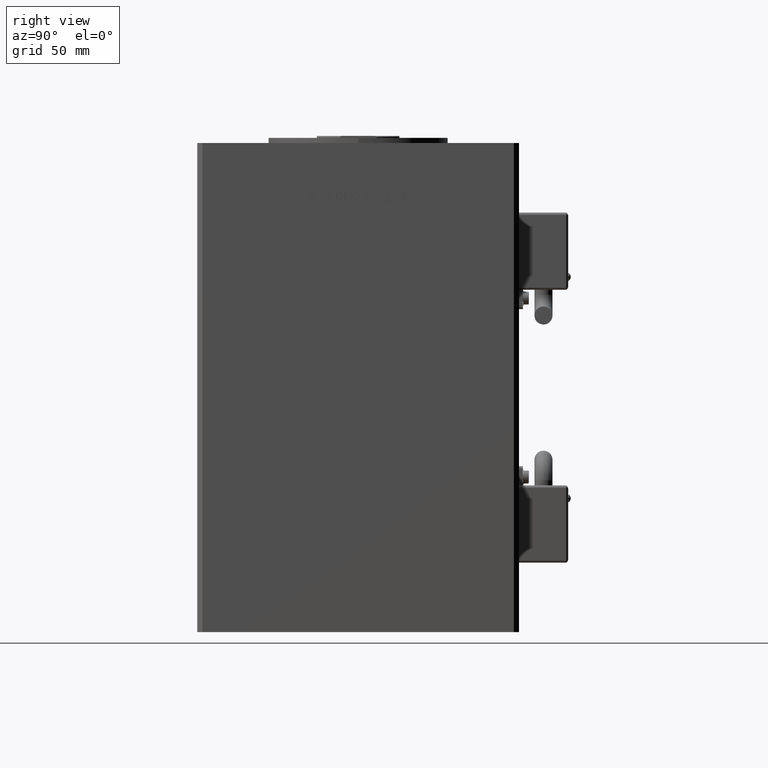
[diagram: clean part render]
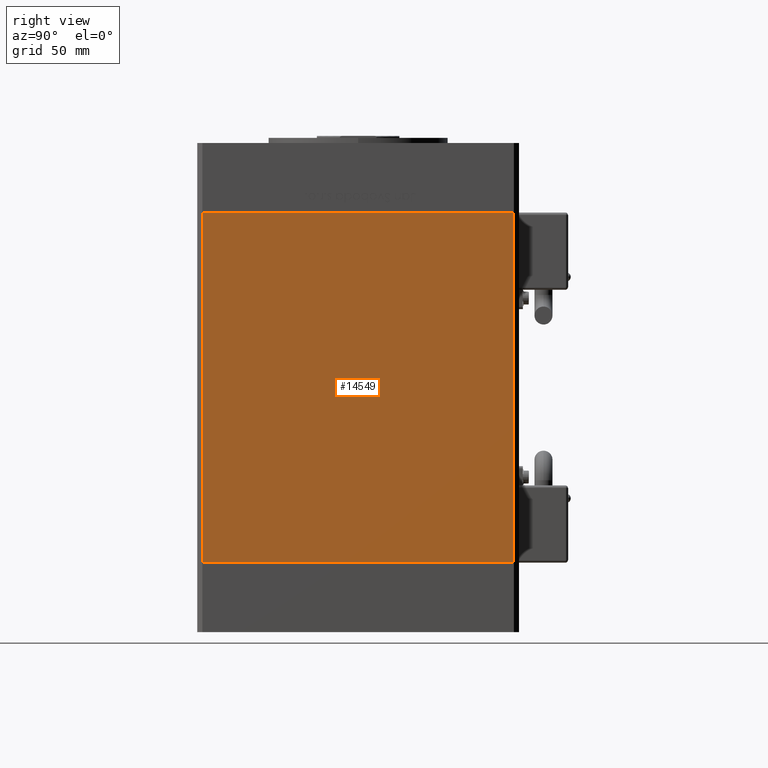
[diagram: same view with one face highlighted and labeled with its STEP entity id]
A machine part, right view. The second image highlights one B-rep face of the part: STEP entity #14549.
In plain terms, the highlighted planar face has unit normal (1, -0, 0).
Its self-contained STEP definition (entity closure, byte-faithful):
#79 = DIRECTION ( 'NONE',  ( 1.000000000000000000, -2.293849224432141861E-16, 0.000000000000000000 ) ) ;
#3422 = CARTESIAN_POINT ( 'NONE',  ( 75.00000000000001421, 60.50000000000000000, 0.000000000000000000 ) ) ;
#6721 = LINE ( 'NONE', #52458, #43470 ) ;
#7143 = PLANE ( 'NONE',  #49414 ) ;
#7386 = ORIENTED_EDGE ( 'NONE', *, *, #22043, .T. ) ;
#11599 = CARTESIAN_POINT ( 'NONE',  ( 75.00000000000001421, 60.50000000000000000, 136.0000000000000000 ) ) ;
#12408 = ORIENTED_EDGE ( 'NONE', *, *, #28996, .F. ) ;
#12756 = DIRECTION ( 'NONE',  ( -0.000000000000000000, -0.000000000000000000, -1.000000000000000000 ) ) ;
#13355 = EDGE_CURVE ( 'NONE', #47788, #54453, #50858, .T. ) ;
#14549 = ADVANCED_FACE ( 'NONE', ( #41434 ), #7143, .T. ) ;
#14596 = CARTESIAN_POINT ( 'NONE',  ( 75.00000000000001421, 60.50000000000000000, 0.000000000000000000 ) ) ;
#16326 = VERTEX_POINT ( 'NONE', #18006 ) ;
#18006 = CARTESIAN_POINT ( 'NONE',  ( 74.99999999999998579, -60.50000000000000000, 0.000000000000000000 ) ) ;
#19045 = LINE ( 'NONE', #14596, #51417 ) ;
#19870 = ORIENTED_EDGE ( 'NONE', *, *, #20828, .F. ) ;
#20828 = EDGE_CURVE ( 'NONE', #50818, #16326, #19045, .T. ) ;
#22043 = EDGE_CURVE ( 'NONE', #54453, #16326, #6721, .T. ) ;
#23506 = DIRECTION ( 'NONE',  ( -2.293849224432141861E-16, -1.000000000000000000, 0.000000000000000000 ) ) ;
#25242 = ORIENTED_EDGE ( 'NONE', *, *, #13355, .T. ) ;
#26085 = DIRECTION ( 'NONE',  ( -2.293849224432141861E-16, -1.000000000000000000, 0.000000000000000000 ) ) ;
#28996 = EDGE_CURVE ( 'NONE', #47788, #50818, #46468, .T. ) ;
#34010 = CARTESIAN_POINT ( 'NONE',  ( 74.99999999999998579, -60.50000000000000000, 136.0000000000000000 ) ) ;
#38628 = CARTESIAN_POINT ( 'NONE',  ( 75.00000000000001421, 60.50000000000000000, 136.0000000000000000 ) ) ;
#39203 = EDGE_LOOP ( 'NONE', ( #19870, #12408, #25242, #7386 ) ) ;
#41434 = FACE_OUTER_BOUND ( 'NONE', #39203, .T. ) ;
#42305 = CARTESIAN_POINT ( 'NONE',  ( 75.00000000000001421, 60.50000000000000000, 136.0000000000000000 ) ) ;
#42515 = CARTESIAN_POINT ( 'NONE',  ( 75.00000000000001421, 60.50000000000000000, 136.0000000000000000 ) ) ;
#43004 = DIRECTION ( 'NONE',  ( 2.293849224432141861E-16, 1.000000000000000000, 0.000000000000000000 ) ) ;
#43470 = VECTOR ( 'NONE', #44089, 1000.000000000000000 ) ;
#44089 = DIRECTION ( 'NONE',  ( -0.000000000000000000, -0.000000000000000000, -1.000000000000000000 ) ) ;
#46468 = LINE ( 'NONE', #42305, #50684 ) ;
#47788 = VERTEX_POINT ( 'NONE', #38628 ) ;
#49414 = AXIS2_PLACEMENT_3D ( 'NONE', #11599, #79, #43004 ) ;
#50684 = VECTOR ( 'NONE', #12756, 1000.000000000000000 ) ;
#50818 = VERTEX_POINT ( 'NONE', #3422 ) ;
#50858 = LINE ( 'NONE', #42515, #53854 ) ;
#51417 = VECTOR ( 'NONE', #23506, 1000.000000000000000 ) ;
#52458 = CARTESIAN_POINT ( 'NONE',  ( 74.99999999999998579, -60.50000000000000000, 136.0000000000000000 ) ) ;
#53854 = VECTOR ( 'NONE', #26085, 1000.000000000000000 ) ;
#54453 = VERTEX_POINT ( 'NONE', #34010 ) ;